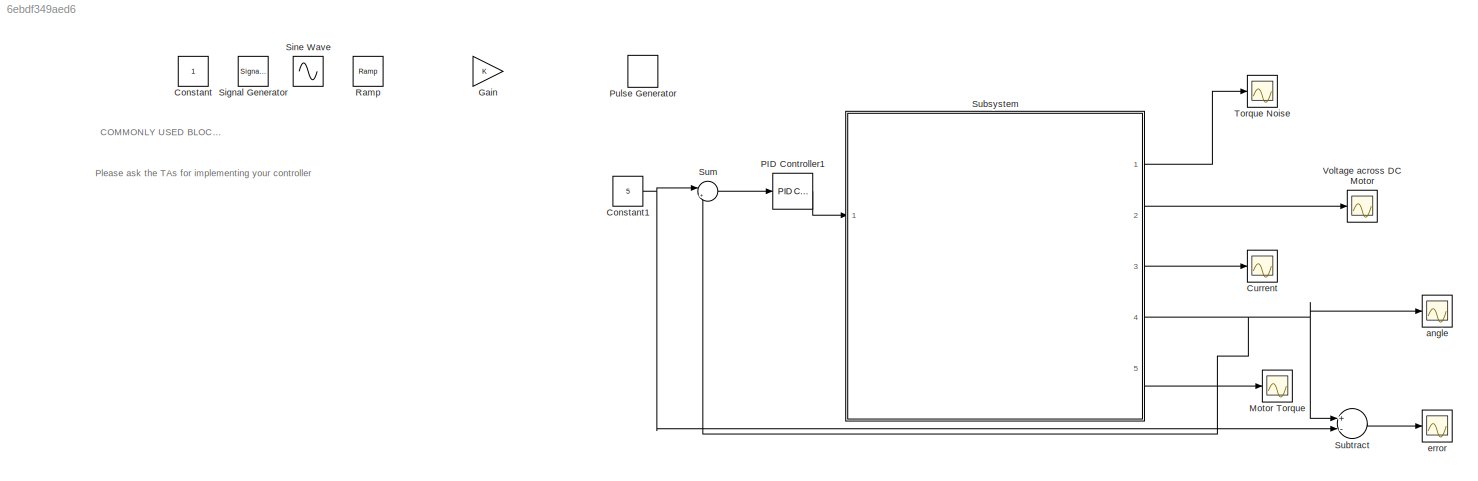
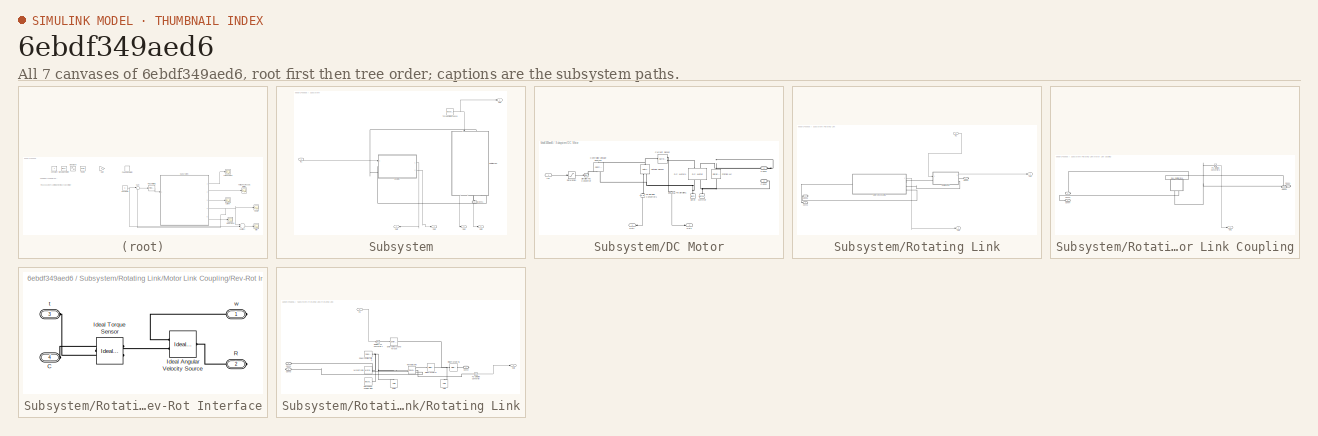
[diagram: thumbnail index - all 7 canvases of the model, root first then tree order]
MODEL slx_6ebdf349aed6
KIND model
CONFIG AbsTol = auto
CONFIG EnableMultiTasking = on
CONFIG FixedStep = auto
CONFIG MaxStep = 0.01
CONFIG MinStep = auto
CONFIG RelTol = 1e-3
CONFIG SampleTimeConstraint = Unconstrained
CONFIG Solver = ode15s
CONFIG SolverName = ode15s
CONFIG StartTime = 0.0
CONFIG StopTime = 10
BLOCK [Constant] Constant
BLOCK [Constant] Constant1
  Value = 5
BLOCK [Scope] Current
  Floating = off
  NumInputPorts = 1
  Ports = [1]
  ScopeSpecificationString = Simulink.scopes.TimeScopeBlockCfg('CurrentConfiguration', extmgr.ConfigurationSet(extmgr.Configuration('Core','General UI',true,'FigureColor',[0.156862745098039 0.156862745098039 0.156862745098039]),extmgr.Configuration('Core','Source UI',true),extmgr.Configuration('Sources','WiredSimulink',true,'DataLogging',true,'DataLoggingSaveFormat','StructureWithTime','DataLoggingDecimation','1','DataLogging...<+3158ch>
BLOCK [Gain] Gain
  OutDataTypeStr = Inherit: Inherit via internal rule
  ParamDataTypeStr = Inherit: Inherit via internal rule
  SaturateOnIntegerOverflow = off
BLOCK [Scope] Motor Torque
  Floating = off
  NumInputPorts = 1
  Ports = [1]
  ScopeSpecificationString = Simulink.scopes.TimeScopeBlockCfg('CurrentConfiguration', extmgr.ConfigurationSet(extmgr.Configuration('Core','General UI',true,'FigureColor',[0.156862745098039 0.156862745098039 0.156862745098039]),extmgr.Configuration('Core','Source UI',true),extmgr.Configuration('Sources','WiredSimulink',true,'DataLogging',true,'DataLoggingVariableName','ScopeData5','DataLoggingSaveFormat','StructureWithTime','...<+3263ch>
BLOCK [Reference] PID Controller1  REF=simulink/Continuous/PID Controller
  Ports = [1, 1]
  SourceBlock = simulink/Continuous/PID Controller
  SourceProductBaseCode = SL
  SourceProductName = Simulink
  SourceType = PID 1dof
BLOCK [DiscretePulseGenerator] Pulse Generator
  Period = 10
  Ports = [0, 1]
  PulseType = Time based
  PulseWidth = 5
BLOCK [Reference] Ramp  REF=simulink/Sources/Ramp
  Ports = [0, 1]
  SourceBlock = simulink/Sources/Ramp
  SourceProductBaseCode = SL
  SourceProductName = Simulink
  SourceType = Ramp
BLOCK [SignalGenerator] Signal Generator
  Ports = [0, 1]
  Units = rad/sec
BLOCK [Sin] Sine Wave
  Ports = [0, 1]
  SampleTime = 0
BLOCK [SubSystem] Subsystem
  Ports = [1, 5, 0, 0, 0, 1]
  RequestExecContextInheritance = off
BLOCK [PMIOPort] Subsystem/Conn1
  Side = Left
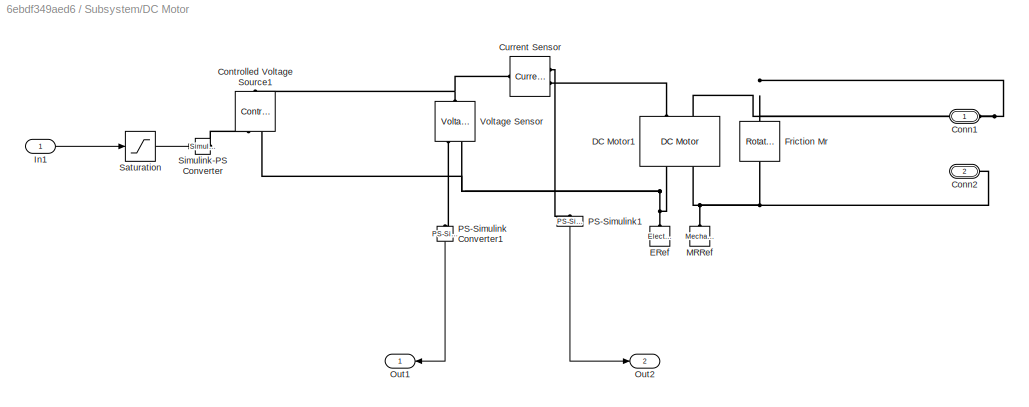
BLOCK [SubSystem] Subsystem/DC Motor
  Ports = [1, 2, 0, 0, 0, 2]
  RequestExecContextInheritance = off
  ShowPortLabels = SignalName
BLOCK [PMIOPort] Subsystem/DC Motor/Conn1
  Side = Left
BLOCK [PMIOPort] Subsystem/DC Motor/Conn2
  Port = 2
  Side = Left
BLOCK [Reference] Subsystem/DC Motor/Controlled Voltage Source1  REF=fl_lib/Electrical/Electrical Sources/Controlled Voltage
Source
  Ports = [0, 0, 0, 0, 0, 1, 2]
  SourceBlock = fl_lib/Electrical/Electrical Sources/Controlled Voltage\nSource
  SourceProductBaseCode = SS
  SourceProductName = Simscape
  SourceType = Controlled Voltage\nSource
BLOCK [Reference] Subsystem/DC Motor/Current Sensor  REF=fl_lib/Electrical/Electrical Sensors/Current Sensor
  Ports = [0, 0, 0, 0, 0, 1, 2]
  SourceBlock = fl_lib/Electrical/Electrical Sensors/Current Sensor
  SourceProductBaseCode = SS
  SourceProductName = Simscape
  SourceType = Current Sensor
BLOCK [Reference] Subsystem/DC Motor/DC Motor1  REF=ee_lib/Electromechanical/Brushed Motors/DC Motor
  Ports = [0, 0, 0, 0, 0, 2, 2]
  SourceBlock = ee_lib/Electromechanical/Brushed Motors/DC Motor
  SourceProductBaseCode = PS
  SourceProductName = Simscape Electrical
  SourceType = DC Motor
BLOCK [Reference] Subsystem/DC Motor/ERef  REF=fl_lib/Electrical/Electrical Elements/Electrical Reference
  Ports = [0, 0, 0, 0, 0, 1]
  SourceBlock = fl_lib/Electrical/Electrical Elements/Electrical Reference
  SourceProductBaseCode = SS
  SourceProductName = Simscape
  SourceType = Electrical Reference
BLOCK [Reference] Subsystem/DC Motor/Friction Mr  REF=fl_lib/Mechanical/Rotational Elements/Rotational Friction
  Ports = [0, 0, 0, 0, 0, 1, 1]
  SourceBlock = fl_lib/Mechanical/Rotational Elements/Rotational Friction
  SourceProductBaseCode = SS
  SourceProductName = Simscape
  SourceType = Rotational Friction
BLOCK [Inport] Subsystem/DC Motor/In1
  IconDisplay = Port number
BLOCK [Reference] Subsystem/DC Motor/MRRef  REF=fl_lib/Mechanical/Rotational Elements/Mechanical
Rotational Reference
  Ports = [0, 0, 0, 0, 0, 1]
  SourceBlock = fl_lib/Mechanical/Rotational Elements/Mechanical\nRotational Reference
  SourceProductBaseCode = SS
  SourceProductName = Simscape
  SourceType = Mechanical\nRotational Reference
BLOCK [Outport] Subsystem/DC Motor/Out1
  IconDisplay = Port number
BLOCK [Outport] Subsystem/DC Motor/Out2
  IconDisplay = Port number
  Port = 2
BLOCK [Reference] Subsystem/DC Motor/PS-Simulink Converter1  REF=nesl_utility/PS-Simulink
Converter
  Ports = [0, 1, 0, 0, 0, 1]
  SourceBlock = nesl_utility/PS-Simulink\nConverter
  SourceProductBaseCode = SS
  SourceProductName = Simscape
  SourceType = PS-Simulink\nConverter
BLOCK [Reference] Subsystem/DC Motor/PS-Simulink1  REF=nesl_utility/PS-Simulink
Converter
  Ports = [0, 1, 0, 0, 0, 1]
  SourceBlock = nesl_utility/PS-Simulink\nConverter
  SourceProductBaseCode = SS
  SourceProductName = Simscape
  SourceType = PS-Simulink\nConverter
BLOCK [Saturate] Subsystem/DC Motor/Saturation
  InputPortMap = u0
  LowerLimit = -12
  Ports = [1, 1]
  UpperLimit = 12
BLOCK [Reference] Subsystem/DC Motor/Simulink-PS Converter  REF=nesl_utility/Simulink-PS
Converter
  Ports = [1, 0, 0, 0, 0, 0, 1]
  SourceBlock = nesl_utility/Simulink-PS\nConverter
  SourceProductBaseCode = SS
  SourceProductName = Simscape
  SourceType = Simulink-PS\nConverter
BLOCK [Reference] Subsystem/DC Motor/Voltage Sensor  REF=fl_lib/Electrical/Electrical Sensors/Voltage Sensor
  Ports = [0, 0, 0, 0, 0, 1, 2]
  SourceBlock = fl_lib/Electrical/Electrical Sensors/Voltage Sensor
  SourceProductBaseCode = SS
  SourceProductName = Simscape
  SourceType = Voltage Sensor
BLOCK [Inport] Subsystem/In1
  IconDisplay = Port number
BLOCK [Outport] Subsystem/Out1
  IconDisplay = Port number
BLOCK [Outport] Subsystem/Out2
  IconDisplay = Port number
  Port = 2
BLOCK [Outport] Subsystem/Out3
  IconDisplay = Port number
  Port = 3
BLOCK [Outport] Subsystem/Out4
  IconDisplay = Port number
  Port = 4
BLOCK [Outport] Subsystem/Out5
  IconDisplay = Port number
  Port = 5
BLOCK [SubSystem] Subsystem/Rotating Link
  Ports = [1, 2, 0, 0, 0, 1, 2]
  RequestExecContextInheritance = off
BLOCK [PMIOPort] Subsystem/Rotating Link/Conn1
  Side = Right
BLOCK [PMIOPort] Subsystem/Rotating Link/Conn2
  Port = 2
  Side = Right
BLOCK [PMIOPort] Subsystem/Rotating Link/Conn3
  Port = 3
  Side = Left
BLOCK [Inport] Subsystem/Rotating Link/In1
  IconDisplay = Port number
BLOCK [SubSystem] Subsystem/Rotating Link/Motor Link Coupling
  Ports = [0, 1, 0, 0, 0, 1, 3]
  RequestExecContextInheritance = off
BLOCK [PMIOPort] Subsystem/Rotating Link/Motor Link Coupling/Conn1
  Side = Right
BLOCK [PMIOPort] Subsystem/Rotating Link/Motor Link Coupling/Conn2
  Port = 2
  Side = Right
BLOCK [PMIOPort] Subsystem/Rotating Link/Motor Link Coupling/Conn3
  Port = 3
  Side = Right
BLOCK [PMIOPort] Subsystem/Rotating Link/Motor Link Coupling/Conn4
  Port = 4
  Side = Left
BLOCK [Outport] Subsystem/Rotating Link/Motor Link Coupling/Out1
  IconDisplay = Port number
BLOCK [Reference] Subsystem/Rotating Link/Motor Link Coupling/PS-Simulink Converter2  REF=nesl_utility/PS-Simulink
Converter
  Ports = [0, 1, 0, 0, 0, 1]
  SourceBlock = nesl_utility/PS-Simulink\nConverter
  SourceProductBaseCode = SS
  SourceProductName = Simscape
  SourceType = PS-Simulink\nConverter
BLOCK [SubSystem] Subsystem/Rotating Link/Motor Link Coupling/Rev-Rot Interface
  Ports = [0, 0, 0, 0, 0, 2, 2]
  RequestExecContextInheritance = off
BLOCK [PMIOPort] Subsystem/Rotating Link/Motor Link Coupling/Rev-Rot Interface/C
  Port = 4
  Side = Left
BLOCK [Reference] Subsystem/Rotating Link/Motor Link Coupling/Rev-Rot Interface/Ideal Angular Velocity Source  REF=fl_lib/Mechanical/Mechanical Sources/Ideal Angular
Velocity Source
  Ports = [0, 0, 0, 0, 0, 1, 2]
  SourceBlock = fl_lib/Mechanical/Mechanical Sources/Ideal Angular\nVelocity Source
  SourceProductBaseCode = SS
  SourceProductName = Simscape
  SourceType = Ideal Angular\nVelocity Source
BLOCK [Reference] Subsystem/Rotating Link/Motor Link Coupling/Rev-Rot Interface/Ideal Torque Sensor  REF=fl_lib/Mechanical/Mechanical Sensors/Ideal Torque Sensor
  Ports = [0, 0, 0, 0, 0, 1, 2]
  SourceBlock = fl_lib/Mechanical/Mechanical Sensors/Ideal Torque Sensor
  SourceProductBaseCode = SS
  SourceProductName = Simscape
  SourceType = Ideal Torque Sensor
BLOCK [PMIOPort] Subsystem/Rotating Link/Motor Link Coupling/Rev-Rot Interface/R
  Port = 2
  Side = Right
BLOCK [PMIOPort] Subsystem/Rotating Link/Motor Link Coupling/Rev-Rot Interface/t
  Port = 3
  Side = Left
BLOCK [PMIOPort] Subsystem/Rotating Link/Motor Link Coupling/Rev-Rot Interface/w
  Side = Right
BLOCK [Outport] Subsystem/Rotating Link/Out1
  IconDisplay = Port number
BLOCK [Outport] Subsystem/Rotating Link/Out2
  IconDisplay = Port number
  Port = 2
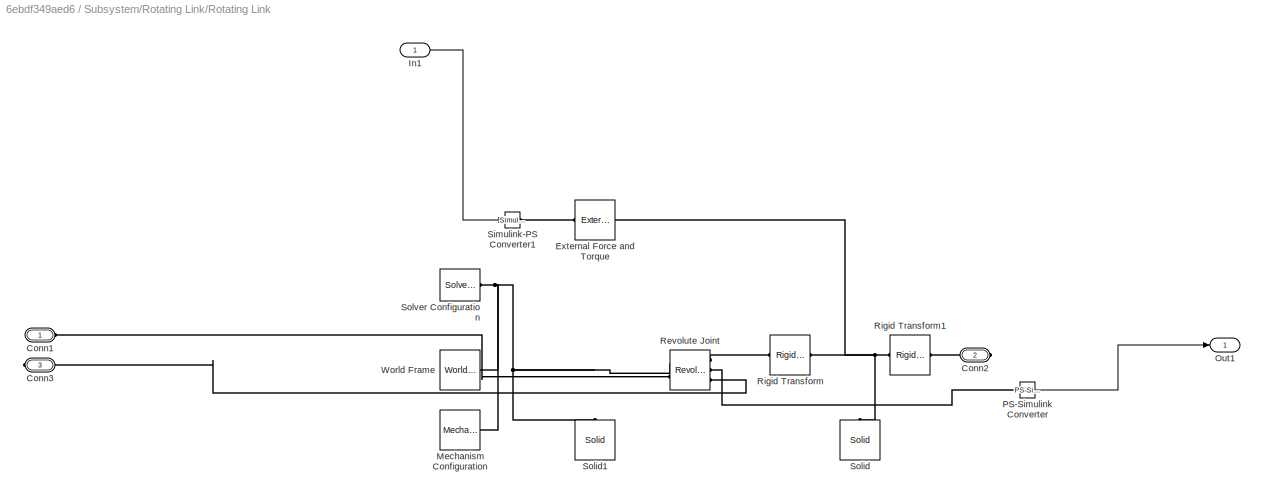
BLOCK [SubSystem] Subsystem/Rotating Link/Rotating Link
  Ports = [1, 1, 0, 0, 0, 1, 2]
  RequestExecContextInheritance = off
BLOCK [PMIOPort] Subsystem/Rotating Link/Rotating Link/Conn1
  Side = Left
BLOCK [PMIOPort] Subsystem/Rotating Link/Rotating Link/Conn2
  Port = 2
  Side = Right
BLOCK [PMIOPort] Subsystem/Rotating Link/Rotating Link/Conn3
  Port = 3
  Side = Right
BLOCK [Reference] Subsystem/Rotating Link/Rotating Link/External Force and Torque  REF=sm_lib/Forces and
Torques/External Force
and Torque
  Ports = [0, 0, 0, 0, 0, 1, 1]
  SourceBlock = sm_lib/Forces and\nTorques/External Force\nand Torque
  SourceProductBaseCode = MS
  SourceProductName = Simscape Multibody
  SourceType = External Force\nand Torque
BLOCK [Inport] Subsystem/Rotating Link/Rotating Link/In1
  IconDisplay = Port number
BLOCK [Reference] Subsystem/Rotating Link/Rotating Link/Mechanism Configuration  REF=sm_lib/Utilities/Mechanism
Configuration
  Ports = [0, 0, 0, 0, 0, 0, 1]
  SourceBlock = sm_lib/Utilities/Mechanism\nConfiguration
  SourceProductBaseCode = MS
  SourceProductName = Simscape Multibody
  SourceType = Mechanism\nConfiguration
BLOCK [Outport] Subsystem/Rotating Link/Rotating Link/Out1
  IconDisplay = Port number
BLOCK [Reference] Subsystem/Rotating Link/Rotating Link/PS-Simulink Converter  REF=nesl_utility/PS-Simulink
Converter
  Ports = [0, 1, 0, 0, 0, 1]
  SourceBlock = nesl_utility/PS-Simulink\nConverter
  SourceProductBaseCode = SS
  SourceProductName = Simscape
  SourceType = PS-Simulink\nConverter
BLOCK [Reference] Subsystem/Rotating Link/Rotating Link/Revolute Joint  REF=sm_lib/Joints/Revolute Joint
  Ports = [0, 0, 0, 0, 0, 2, 3]
  SourceBlock = sm_lib/Joints/Revolute Joint
  SourceProductBaseCode = MS
  SourceProductName = Simscape Multibody
  SourceType = Revolute Joint
BLOCK [Reference] Subsystem/Rotating Link/Rotating Link/Rigid Transform  REF=sm_lib/Frames and
Transforms/Rigid
Transform
  Ports = [0, 0, 0, 0, 0, 1, 1]
  SourceBlock = sm_lib/Frames and\nTransforms/Rigid\nTransform
  SourceProductBaseCode = MS
  SourceProductName = Simscape Multibody
  SourceType = Rigid\nTransform
BLOCK [Reference] Subsystem/Rotating Link/Rotating Link/Rigid Transform1  REF=sm_lib/Frames and
Transforms/Rigid
Transform
  Ports = [0, 0, 0, 0, 0, 1, 1]
  SourceBlock = sm_lib/Frames and\nTransforms/Rigid\nTransform
  SourceProductBaseCode = MS
  SourceProductName = Simscape Multibody
  SourceType = Rigid\nTransform
BLOCK [Reference] Subsystem/Rotating Link/Rotating Link/Simulink-PS Converter1  REF=nesl_utility/Simulink-PS
Converter
  Ports = [1, 0, 0, 0, 0, 0, 1]
  SourceBlock = nesl_utility/Simulink-PS\nConverter
  SourceProductBaseCode = SS
  SourceProductName = Simscape
  SourceType = Simulink-PS\nConverter
BLOCK [Reference] Subsystem/Rotating Link/Rotating Link/Solid  REF=sm_lib/Body Elements/Solid
  Ports = [0, 0, 0, 0, 0, 0, 1]
  SourceBlock = sm_lib/Body Elements/Solid
  SourceProductBaseCode = MS
  SourceProductName = Simscape Multibody
  SourceType = Solid
BLOCK [Reference] Subsystem/Rotating Link/Rotating Link/Solid1  REF=sm_lib/Body Elements/Solid
  Ports = [0, 0, 0, 0, 0, 0, 1]
  SourceBlock = sm_lib/Body Elements/Solid
  SourceProductBaseCode = MS
  SourceProductName = Simscape Multibody
  SourceType = Solid
BLOCK [Reference] Subsystem/Rotating Link/Rotating Link/Solver Configuration  REF=nesl_utility/Solver
Configuration
  Ports = [0, 0, 0, 0, 0, 0, 1]
  SourceBlock = nesl_utility/Solver\nConfiguration
  SourceProductBaseCode = SS
  SourceProductName = Simscape
  SourceType = Solver\nConfiguration
BLOCK [Reference] Subsystem/Rotating Link/Rotating Link/World Frame  REF=sm_lib/Frames and
Transforms/World Frame
  Ports = [0, 0, 0, 0, 0, 0, 1]
  SourceBlock = sm_lib/Frames and\nTransforms/World Frame
  SourceProductBaseCode = MS
  SourceProductName = Simscape Multibody
  SourceType = World Frame
BLOCK [Reference] Subsystem/Torque Disturbance  REF=dspsrcs4/Random
Source
  Ports = [0, 1]
  SourceBlock = dspsrcs4/Random\nSource
  SourceProductBaseCode = DS
  SourceProductName = DSP System Toolbox
  SourceType = Random Source
  UserDataPersistent = on
BLOCK [Sum] Subtract
  InputSameDT = off
  Inputs = +-
  OutDataTypeStr = Inherit: Inherit via internal rule
  Ports = [2, 1]
  SaturateOnIntegerOverflow = off
BLOCK [Sum] Sum
  IconShape = round
  InputSameDT = off
  Inputs = |+-
  OutDataTypeStr = Inherit: Inherit via internal rule
  Ports = [2, 1]
  SaturateOnIntegerOverflow = off
BLOCK [Scope] Torque Noise
  Floating = off
  NumInputPorts = 1
  Ports = [1]
  ScopeSpecificationString = C++SS(StrPVP('Location','[813, 114, 1135, 351]'),StrPVP('Open','off'),MxPVP('AxesTitles',53,'struct(''axes1'',''%<SignalLabel>'')'),MxPVP('ScopeGraphics',56,'struct(''FigureColor'',''[0.156862745098039 0.156862745098039 0.156862745098039]'',''AxesColor'',''[0 0 0]'',''AxesTickColor'',''[0.686274509803922 0.686274509803922 0.686274509803922]'',''LineColors'',''[1 1 0.0666666666666667;0.074509803921...<+647ch>
BLOCK [Scope] Voltage across DC Motor
  Floating = off
  NumInputPorts = 1
  Ports = [1]
  ScopeSpecificationString = Simulink.scopes.TimeScopeBlockCfg('CurrentConfiguration', extmgr.ConfigurationSet(extmgr.Configuration('Core','General UI',true,'FigureColor',[0.156862745098039 0.156862745098039 0.156862745098039]),extmgr.Configuration('Core','Source UI',true),extmgr.Configuration('Sources','WiredSimulink',true,'DataLoggingVariableName','ScopeData4','DataLoggingSaveFormat','StructureWithTime','DataLoggingDecimati...<+3132ch>
BLOCK [Scope] angle 
  Floating = off
  NumInputPorts = 1
  Ports = [1]
  ScopeSpecificationString = Simulink.scopes.TimeScopeBlockCfg('CurrentConfiguration', extmgr.ConfigurationSet(extmgr.Configuration('Core','General UI',true,'FigureColor',[0.156862745098039 0.156862745098039 0.156862745098039]),extmgr.Configuration('Core','Source UI',true),extmgr.Configuration('Sources','WiredSimulink',true,'DataLogging',true,'DataLoggingVariableName','ScopeData2','DataLoggingSaveFormat','StructureWithTime','...<+3245ch>
BLOCK [Scope] error 
  Floating = off
  NumInputPorts = 1
  Ports = [1]
  ScopeSpecificationString = Simulink.scopes.TimeScopeBlockCfg('CurrentConfiguration', extmgr.ConfigurationSet(extmgr.Configuration('Core','General UI',true),extmgr.Configuration('Core','Source UI',true),extmgr.Configuration('Sources','WiredSimulink',true,'DataLoggingVariableName','ScopeData1'),extmgr.Configuration('Visuals','Time Domain',true,'SerializedDisplays',{struct('MinYLimReal','-4.25095','MaxYLimReal','0.47586','YLab...<+1394ch>
ANNOTATION (root): COMMONLY USED BLOCKS
ANNOTATION (root): Please ask the TAs for implementing your controller
NET Constant1:1 -> Subtract:2, Sum:1
LINE PID Controller1:1 -> Subsystem:1
LINE Subsystem/DC Motor/In1:1 -> Subsystem/DC Motor/Saturation:1
LINE Subsystem/DC Motor/PS-Simulink Converter1:1 -> Subsystem/DC Motor/Out1:1
LINE Subsystem/DC Motor/PS-Simulink1:1 -> Subsystem/DC Motor/Out2:1
LINE Subsystem/DC Motor/Saturation:1 -> Subsystem/DC Motor/Simulink-PS Converter:1
LINE Subsystem/DC Motor:1 -> Subsystem/Out2:1
LINE Subsystem/DC Motor:2 -> Subsystem/Out3:1
LINE Subsystem/In1:1 -> Subsystem/DC Motor:1
LINE Subsystem/Rotating Link/In1:1 -> Subsystem/Rotating Link/Rotating Link:1
LINE Subsystem/Rotating Link/Motor Link Coupling/PS-Simulink Converter2:1 -> Subsystem/Rotating Link/Motor Link Coupling/Out1:1
LINE Subsystem/Rotating Link/Motor Link Coupling:1 -> Subsystem/Rotating Link/Out2:1
LINE Subsystem/Rotating Link/Rotating Link/In1:1 -> Subsystem/Rotating Link/Rotating Link/Simulink-PS Converter1:1
LINE Subsystem/Rotating Link/Rotating Link/PS-Simulink Converter:1 -> Subsystem/Rotating Link/Rotating Link/Out1:1
LINE Subsystem/Rotating Link/Rotating Link:1 -> Subsystem/Rotating Link/Out1:1
LINE Subsystem/Rotating Link:1 -> Subsystem/Out4:1
LINE Subsystem/Rotating Link:2 -> Subsystem/Out5:1
NET Subsystem/Torque Disturbance:1 -> Subsystem/Out1:1, Subsystem/Rotating Link:1
LINE Subsystem:1 -> Torque Noise:1
LINE Subsystem:2 -> Voltage across DC Motor:1
LINE Subsystem:3 -> Current:1
NET Subsystem:4 -> Subtract:1, Sum:2, angle :1
LINE Subsystem:5 -> Motor Torque:1
LINE Subtract:1 -> error :1
LINE Sum:1 -> PID Controller1:1
PLINE Subsystem/Conn1:RConn1 -- Subsystem/Rotating Link:RConn1
PNET net1: Subsystem/DC Motor/Conn1:RConn1 -- Subsystem/DC Motor/DC Motor1:LConn2 -- Subsystem/DC Motor/Friction Mr:LConn1
PNET net2: Subsystem/DC Motor/Conn2:RConn1 -- Subsystem/DC Motor/DC Motor1:RConn2 -- Subsystem/DC Motor/Friction Mr:RConn1 -- Subsystem/DC Motor/MRRef:LConn1
PNET net3: Subsystem/DC Motor/Controlled Voltage Source1:LConn1 -- Subsystem/DC Motor/Current Sensor:LConn1 -- Subsystem/DC Motor/Voltage Sensor:LConn1
PLINE Subsystem/DC Motor/Controlled Voltage Source1:RConn1 -- Subsystem/DC Motor/Simulink-PS Converter:RConn1
PNET net4: Subsystem/DC Motor/Controlled Voltage Source1:RConn2 -- Subsystem/DC Motor/DC Motor1:RConn1 -- Subsystem/DC Motor/ERef:LConn1 -- Subsystem/DC Motor/Voltage Sensor:RConn2
PLINE Subsystem/DC Motor/Current Sensor:RConn1 -- Subsystem/DC Motor/PS-Simulink1:LConn1
PLINE Subsystem/DC Motor/Current Sensor:RConn2 -- Subsystem/DC Motor/DC Motor1:LConn1
PLINE Subsystem/DC Motor/PS-Simulink Converter1:LConn1 -- Subsystem/DC Motor/Voltage Sensor:RConn1
PLINE Subsystem/DC Motor:LConn1 -- Subsystem/Rotating Link:RConn2
PLINE Subsystem/DC Motor:LConn2 -- Subsystem/Rotating Link:LConn1
PLINE Subsystem/Rotating Link/Conn1:RConn1 -- Subsystem/Rotating Link/Rotating Link:RConn1
PLINE Subsystem/Rotating Link/Conn2:RConn1 -- Subsystem/Rotating Link/Motor Link Coupling:RConn3
PLINE Subsystem/Rotating Link/Conn3:RConn1 -- Subsystem/Rotating Link/Motor Link Coupling:LConn1
PNET net5: Subsystem/Rotating Link/Motor Link Coupling/Conn1:RConn1 -- Subsystem/Rotating Link/Motor Link Coupling/PS-Simulink Converter2:LConn1 -- Subsystem/Rotating Link/Motor Link Coupling/Rev-Rot Interface:LConn1
PLINE Subsystem/Rotating Link/Motor Link Coupling/Conn2:RConn1 -- Subsystem/Rotating Link/Motor Link Coupling/Rev-Rot Interface:RConn1
PLINE Subsystem/Rotating Link/Motor Link Coupling/Conn3:RConn1 -- Subsystem/Rotating Link/Motor Link Coupling/Rev-Rot Interface:RConn2
PLINE Subsystem/Rotating Link/Motor Link Coupling/Conn4:RConn1 -- Subsystem/Rotating Link/Motor Link Coupling/Rev-Rot Interface:LConn2
PLINE Subsystem/Rotating Link/Motor Link Coupling/Rev-Rot Interface/C:RConn1 -- Subsystem/Rotating Link/Motor Link Coupling/Rev-Rot Interface/Ideal Torque Sensor:RConn1
PLINE Subsystem/Rotating Link/Motor Link Coupling/Rev-Rot Interface/Ideal Angular Velocity Source:LConn1 -- Subsystem/Rotating Link/Motor Link Coupling/Rev-Rot Interface/R:RConn1
PLINE Subsystem/Rotating Link/Motor Link Coupling/Rev-Rot Interface/Ideal Angular Velocity Source:RConn1 -- Subsystem/Rotating Link/Motor Link Coupling/Rev-Rot Interface/w:RConn1
PLINE Subsystem/Rotating Link/Motor Link Coupling/Rev-Rot Interface/Ideal Angular Velocity Source:RConn2 -- Subsystem/Rotating Link/Motor Link Coupling/Rev-Rot Interface/Ideal Torque Sensor:LConn1
PLINE Subsystem/Rotating Link/Motor Link Coupling/Rev-Rot Interface/Ideal Torque Sensor:RConn2 -- Subsystem/Rotating Link/Motor Link Coupling/Rev-Rot Interface/t:RConn1
PLINE Subsystem/Rotating Link/Motor Link Coupling:RConn1 -- Subsystem/Rotating Link/Rotating Link:LConn1
PLINE Subsystem/Rotating Link/Motor Link Coupling:RConn2 -- Subsystem/Rotating Link/Rotating Link:RConn2
PLINE Subsystem/Rotating Link/Rotating Link/Conn1:RConn1 -- Subsystem/Rotating Link/Rotating Link/Revolute Joint:LConn2
PLINE Subsystem/Rotating Link/Rotating Link/Conn2:RConn1 -- Subsystem/Rotating Link/Rotating Link/Rigid Transform1:RConn1
PLINE Subsystem/Rotating Link/Rotating Link/Conn3:RConn1 -- Subsystem/Rotating Link/Rotating Link/Revolute Joint:RConn3
PLINE Subsystem/Rotating Link/Rotating Link/External Force and Torque:LConn1 -- Subsystem/Rotating Link/Rotating Link/Simulink-PS Converter1:RConn1
PNET net6: Subsystem/Rotating Link/Rotating Link/External Force and Torque:RConn1 -- Subsystem/Rotating Link/Rotating Link/Rigid Transform1:LConn1 -- Subsystem/Rotating Link/Rotating Link/Rigid Transform:RConn1 -- Subsystem/Rotating Link/Rotating Link/Solid:RConn1
PNET net7: Subsystem/Rotating Link/Rotating Link/Mechanism Configuration:RConn1 -- Subsystem/Rotating Link/Rotating Link/Revolute Joint:LConn1 -- Subsystem/Rotating Link/Rotating Link/Solid1:RConn1 -- Subsystem/Rotating Link/Rotating Link/Solver Configuration:RConn1 -- Subsystem/Rotating Link/Rotating Link/World Frame:RConn1
PLINE Subsystem/Rotating Link/Rotating Link/PS-Simulink Converter:LConn1 -- Subsystem/Rotating Link/Rotating Link/Revolute Joint:RConn2
PLINE Subsystem/Rotating Link/Rotating Link/Revolute Joint:RConn1 -- Subsystem/Rotating Link/Rotating Link/Rigid Transform:LConn1
note: NET lines group one-source signal fan-out (src -> all destinations, sorted); 1:1 wires keep LINE; PNET lines group multi-terminal physical nets as a canonical sorted terminal list (undirected conserving connections); 2-terminal nets keep the pairwise PLINE form
